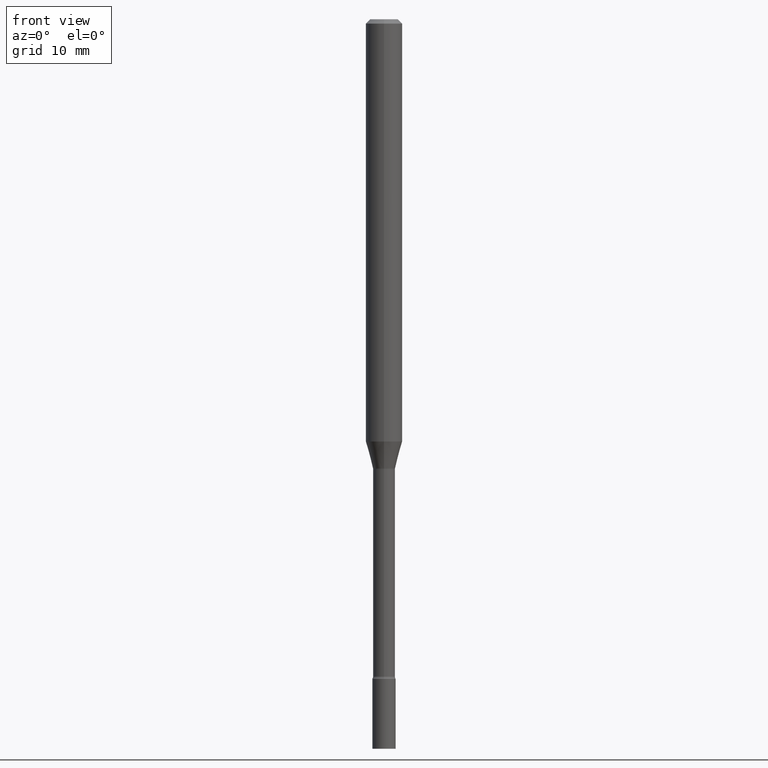
[diagram: clean part render]
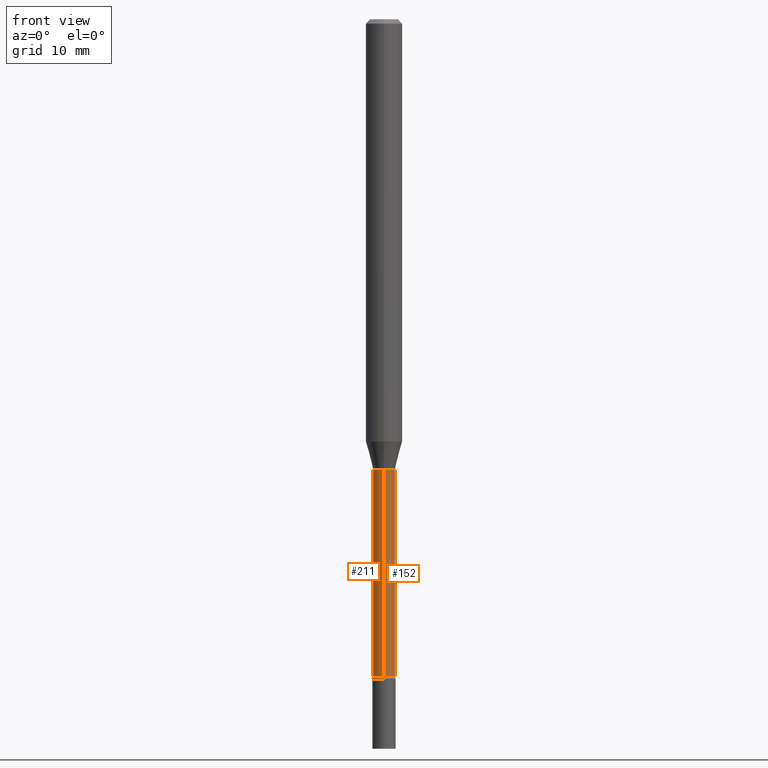
[diagram: same view with one multi-face feature highlighted, each face labeled with its STEP entity id]
A machine part, front view. The highlighted faces form ONE feature: a constant-radius fillet chain: 2 tangent blend faces with common blend radius 0.955 mm. The faces share edges in the B-rep.
Their STEP definitions:
[1] entity #211 (Cylinder):
#1 = CARTESIAN_POINT ( 'NONE',  ( 3.770881139600357188E-29, -5.383733381285902245E-15, -1.541974787463810781 ) ) ;
#2 = ORIENTED_EDGE ( 'NONE', *, *, #17, .F. ) ;
#8 = CARTESIAN_POINT ( 'NONE',  ( 5.506899991020122341E-29, -7.862268846851047983E-15, -2.251861204020249918 ) ) ;
#17 = EDGE_CURVE ( 'NONE', #412, #100, #510, .T. ) ;
#33 = CARTESIAN_POINT ( 'NONE',  ( 2.671640686457979762E-16, 0.03760000000000005005, -1.312786543477132333E-16 ) ) ;
#44 = CARTESIAN_POINT ( 'NONE',  ( -2.625593966809491224E-16, -0.03760000000000795345, -2.251861204020249918 ) ) ;
#71 = DIRECTION ( 'NONE',  ( -2.445488194915675677E-29, 3.491453573077475087E-15, 1.000000000000000000 ) ) ;
#81 = EDGE_CURVE ( 'NONE', #466, #457, #227, .T. ) ;
#83 = CARTESIAN_POINT ( 'NONE',  ( -2.625593966809658857E-16, -0.03760000000000538606, -1.541974787463810781 ) ) ;
#100 = VERTEX_POINT ( 'NONE', #416 ) ;
#186 = CIRCLE ( 'NONE', #407, 0.03760000000000009168 ) ;
#194 = CARTESIAN_POINT ( 'NONE',  ( -2.625593966810039482E-16, -0.03760000000000005005, 1.312786543477132333E-16 ) ) ;
#200 = CARTESIAN_POINT ( 'NONE',  ( 0.000000000000000000, 0.000000000000000000, 0.000000000000000000 ) ) ;
#211 = ADVANCED_FACE ( 'NONE', ( #348 ), #399, .T. ) ;
#227 = LINE ( 'NONE', #194, #292 ) ;
#243 = CARTESIAN_POINT ( 'NONE',  ( 2.756905814749742978E-16, 0.03759999999999222992, -2.251861204020249918 ) ) ;
#257 = EDGE_CURVE ( 'NONE', #412, #466, #186, .T. ) ;
#282 = DIRECTION ( 'NONE',  ( -2.445488194915675677E-29, 3.491453573077475482E-15, 1.000000000000000000 ) ) ;
#284 = AXIS2_PLACEMENT_3D ( 'NONE', #1, #282, #403 ) ;
#292 = VECTOR ( 'NONE', #71, 39.37007874015748143 ) ;
#300 = VECTOR ( 'NONE', #469, 39.37007874015748143 ) ;
#301 = ORIENTED_EDGE ( 'NONE', *, *, #413, .F. ) ;
#318 = DIRECTION ( 'NONE',  ( -6.982962677686265133E-15, -1.000000000000000000, 0.000000000000000000 ) ) ;
#322 = DIRECTION ( 'NONE',  ( -2.445488194915675677E-29, 3.491453573077475482E-15, 1.000000000000000000 ) ) ;
#348 = FACE_OUTER_BOUND ( 'NONE', #489, .T. ) ;
#350 = DIRECTION ( 'NONE',  ( -6.982962677686265922E-15, -1.000000000000000000, 3.491453573077475087E-15 ) ) ;
#354 = CIRCLE ( 'NONE', #284, 0.03760000000000000148 ) ;
#399 = CYLINDRICAL_SURFACE ( 'NONE', #471, 0.03760000000000005005 ) ;
#403 = DIRECTION ( 'NONE',  ( -6.982962677686265922E-15, -1.000000000000000000, 0.000000000000000000 ) ) ;
#407 = AXIS2_PLACEMENT_3D ( 'NONE', #8, #322, #318 ) ;
#412 = VERTEX_POINT ( 'NONE', #243 ) ;
#413 = EDGE_CURVE ( 'NONE', #100, #457, #354, .T. ) ;
#416 = CARTESIAN_POINT ( 'NONE',  ( 2.671640686458530486E-16, 0.03759999999999462383, -1.541974787463810781 ) ) ;
#428 = ORIENTED_EDGE ( 'NONE', *, *, #81, .T. ) ;
#457 = VERTEX_POINT ( 'NONE', #83 ) ;
#466 = VERTEX_POINT ( 'NONE', #44 ) ;
#469 = DIRECTION ( 'NONE',  ( -2.445488194915675677E-29, 3.491453573077475087E-15, 1.000000000000000000 ) ) ;
#471 = AXIS2_PLACEMENT_3D ( 'NONE', #200, #515, #350 ) ;
#489 = EDGE_LOOP ( 'NONE', ( #2, #505, #428, #301 ) ) ;
#505 = ORIENTED_EDGE ( 'NONE', *, *, #257, .T. ) ;
#510 = LINE ( 'NONE', #33, #300 ) ;
#515 = DIRECTION ( 'NONE',  ( -2.445488194915675677E-29, 3.491453573077475482E-15, 1.000000000000000000 ) ) ;
[2] entity #152 (Cylinder):
#17 = EDGE_CURVE ( 'NONE', #412, #100, #510, .T. ) ;
#33 = CARTESIAN_POINT ( 'NONE',  ( 2.671640686457979762E-16, 0.03760000000000005005, -1.312786543477132333E-16 ) ) ;
#44 = CARTESIAN_POINT ( 'NONE',  ( -2.625593966809491224E-16, -0.03760000000000795345, -2.251861204020249918 ) ) ;
#53 = CIRCLE ( 'NONE', #132, 0.03760000000000009168 ) ;
#61 = ORIENTED_EDGE ( 'NONE', *, *, #72, .T. ) ;
#71 = DIRECTION ( 'NONE',  ( -2.445488194915675677E-29, 3.491453573077475087E-15, 1.000000000000000000 ) ) ;
#72 = EDGE_CURVE ( 'NONE', #466, #412, #53, .T. ) ;
#75 = DIRECTION ( 'NONE',  ( -2.445488194915675677E-29, 3.491453573077475482E-15, 1.000000000000000000 ) ) ;
#81 = EDGE_CURVE ( 'NONE', #466, #457, #227, .T. ) ;
#83 = CARTESIAN_POINT ( 'NONE',  ( -2.625593966809658857E-16, -0.03760000000000538606, -1.541974787463810781 ) ) ;
#100 = VERTEX_POINT ( 'NONE', #416 ) ;
#101 = DIRECTION ( 'NONE',  ( -6.982962677686265133E-15, -1.000000000000000000, 0.000000000000000000 ) ) ;
#132 = AXIS2_PLACEMENT_3D ( 'NONE', #261, #303, #101 ) ;
#152 = ADVANCED_FACE ( 'NONE', ( #444 ), #189, .T. ) ;
#157 = DIRECTION ( 'NONE',  ( -6.982962677686265922E-15, -1.000000000000000000, 3.491453573077475087E-15 ) ) ;
#172 = DIRECTION ( 'NONE',  ( -6.982962677686265922E-15, -1.000000000000000000, 0.000000000000000000 ) ) ;
#189 = CYLINDRICAL_SURFACE ( 'NONE', #397, 0.03760000000000005005 ) ;
#194 = CARTESIAN_POINT ( 'NONE',  ( -2.625593966810039482E-16, -0.03760000000000005005, 1.312786543477132333E-16 ) ) ;
#214 = ORIENTED_EDGE ( 'NONE', *, *, #17, .T. ) ;
#227 = LINE ( 'NONE', #194, #292 ) ;
#229 = AXIS2_PLACEMENT_3D ( 'NONE', #299, #75, #172 ) ;
#243 = CARTESIAN_POINT ( 'NONE',  ( 2.756905814749742978E-16, 0.03759999999999222992, -2.251861204020249918 ) ) ;
#254 = ORIENTED_EDGE ( 'NONE', *, *, #467, .F. ) ;
#261 = CARTESIAN_POINT ( 'NONE',  ( 5.506899991020122341E-29, -7.862268846851047983E-15, -2.251861204020249918 ) ) ;
#292 = VECTOR ( 'NONE', #71, 39.37007874015748143 ) ;
#299 = CARTESIAN_POINT ( 'NONE',  ( 3.770881139600357188E-29, -5.383733381285902245E-15, -1.541974787463810781 ) ) ;
#300 = VECTOR ( 'NONE', #469, 39.37007874015748143 ) ;
#303 = DIRECTION ( 'NONE',  ( -2.445488194915675677E-29, 3.491453573077475482E-15, 1.000000000000000000 ) ) ;
#339 = EDGE_LOOP ( 'NONE', ( #61, #214, #254, #344 ) ) ;
#343 = CARTESIAN_POINT ( 'NONE',  ( 0.000000000000000000, 0.000000000000000000, 0.000000000000000000 ) ) ;
#344 = ORIENTED_EDGE ( 'NONE', *, *, #81, .F. ) ;
#397 = AXIS2_PLACEMENT_3D ( 'NONE', #343, #512, #157 ) ;
#412 = VERTEX_POINT ( 'NONE', #243 ) ;
#416 = CARTESIAN_POINT ( 'NONE',  ( 2.671640686458530486E-16, 0.03759999999999462383, -1.541974787463810781 ) ) ;
#444 = FACE_OUTER_BOUND ( 'NONE', #339, .T. ) ;
#453 = CIRCLE ( 'NONE', #229, 0.03760000000000000148 ) ;
#457 = VERTEX_POINT ( 'NONE', #83 ) ;
#466 = VERTEX_POINT ( 'NONE', #44 ) ;
#467 = EDGE_CURVE ( 'NONE', #457, #100, #453, .T. ) ;
#469 = DIRECTION ( 'NONE',  ( -2.445488194915675677E-29, 3.491453573077475087E-15, 1.000000000000000000 ) ) ;
#510 = LINE ( 'NONE', #33, #300 ) ;
#512 = DIRECTION ( 'NONE',  ( -2.445488194915675677E-29, 3.491453573077475482E-15, 1.000000000000000000 ) ) ;